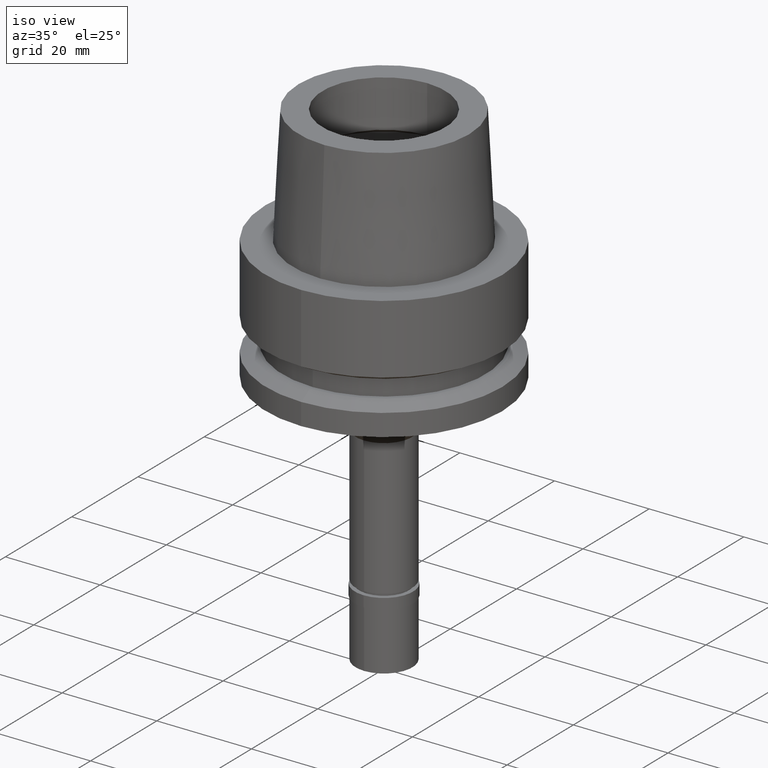
[diagram: clean part render]
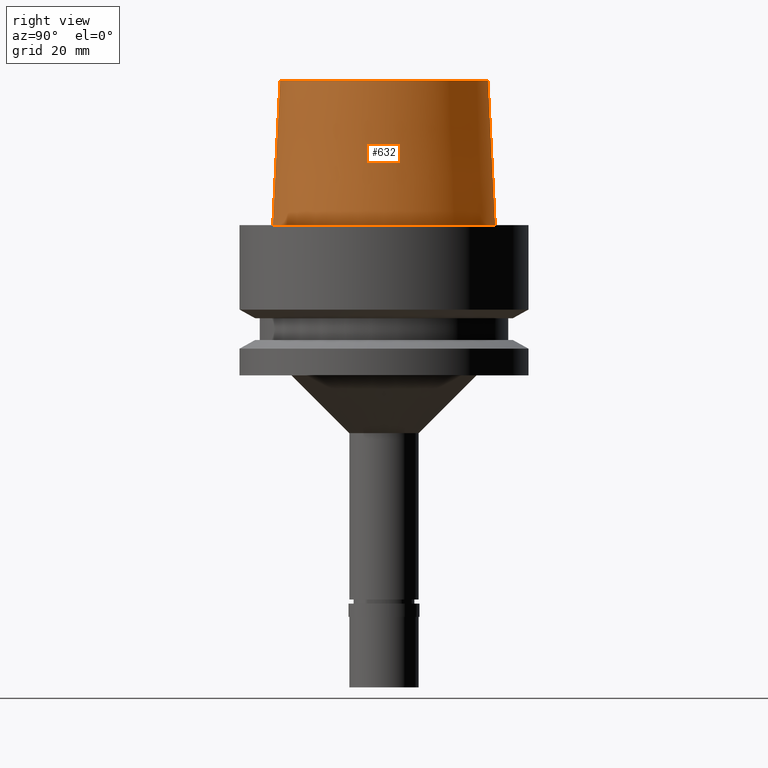
[diagram: tour spotlight — one face highlighted and labeled with its STEP entity id]
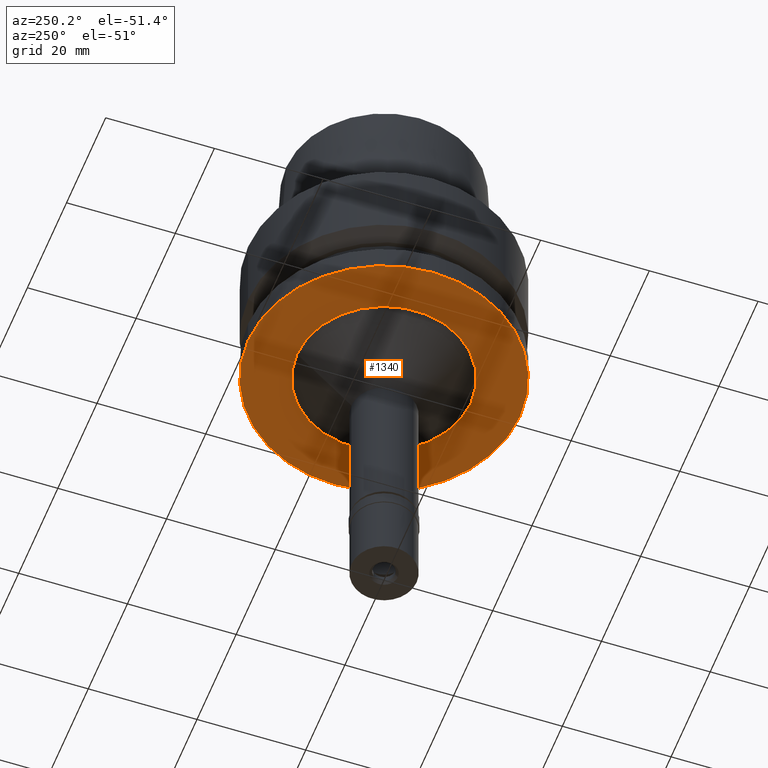
[diagram: tour spotlight — one face highlighted and labeled with its STEP entity id]
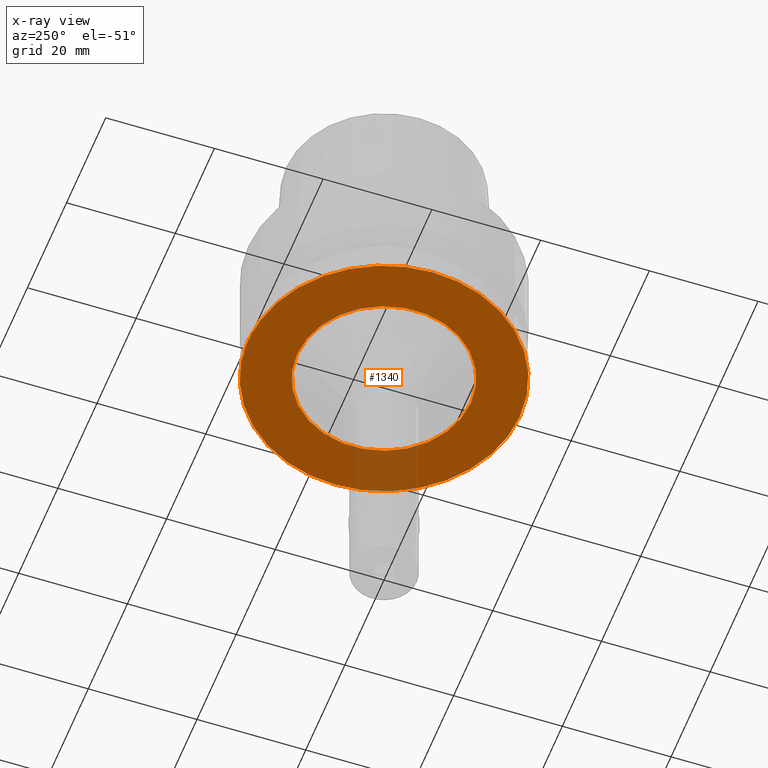
[diagram: x-ray of the same camera — body ghosted, this tour face saturated]
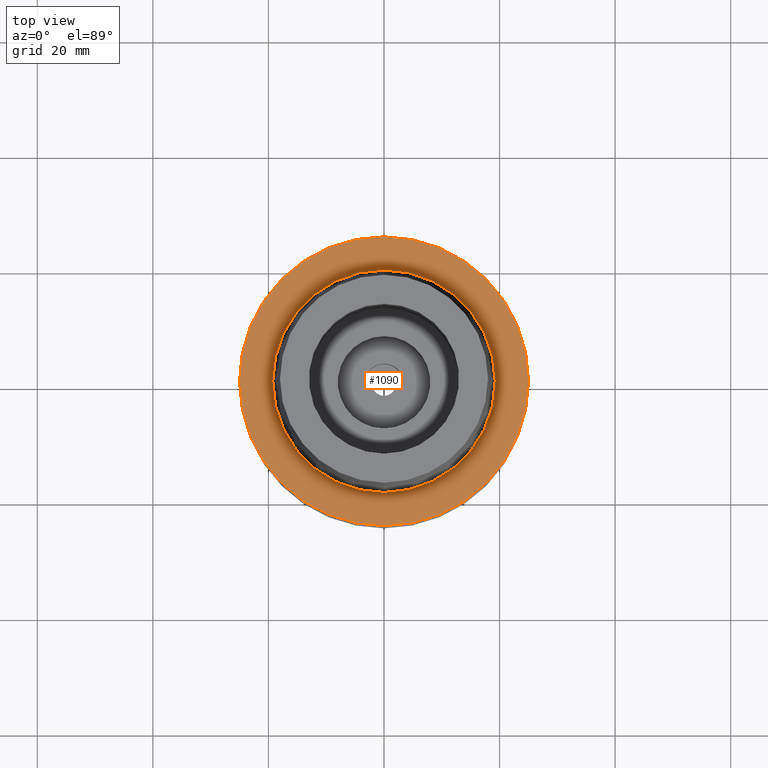
[diagram: tour spotlight — one face highlighted and labeled with its STEP entity id]
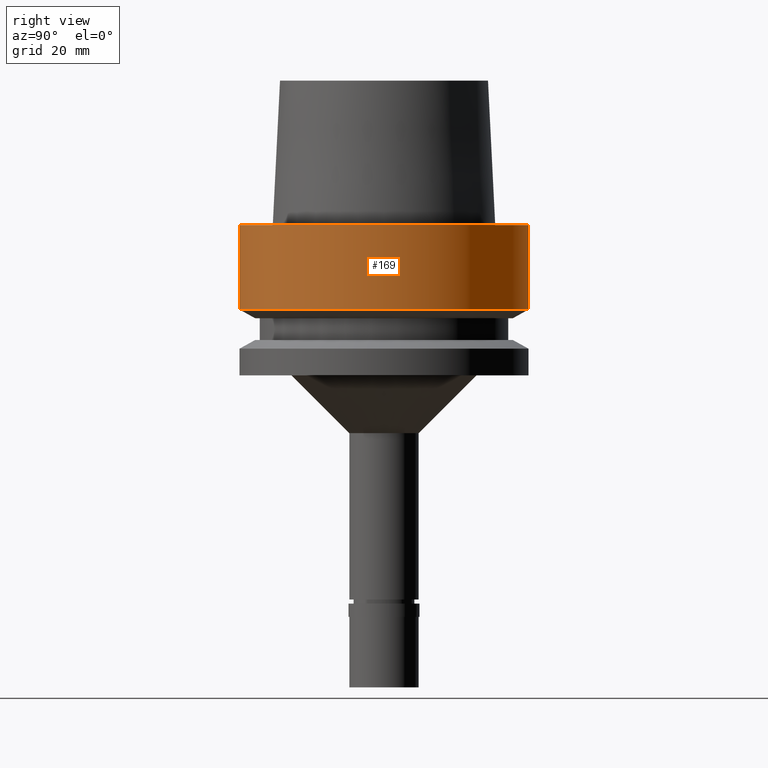
[diagram: tour spotlight — one face highlighted and labeled with its STEP entity id]
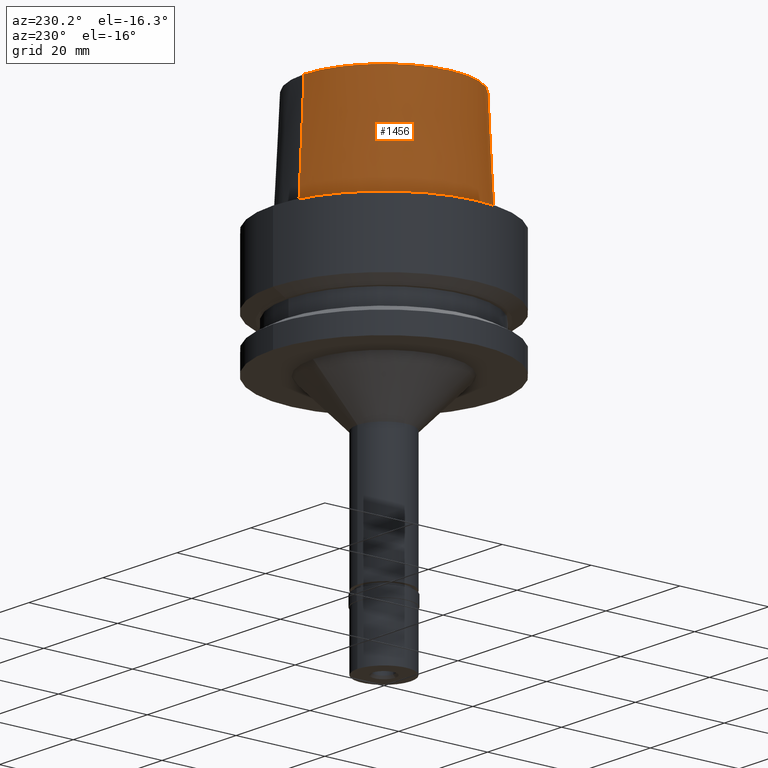
[diagram: tour spotlight — one face highlighted and labeled with its STEP entity id]
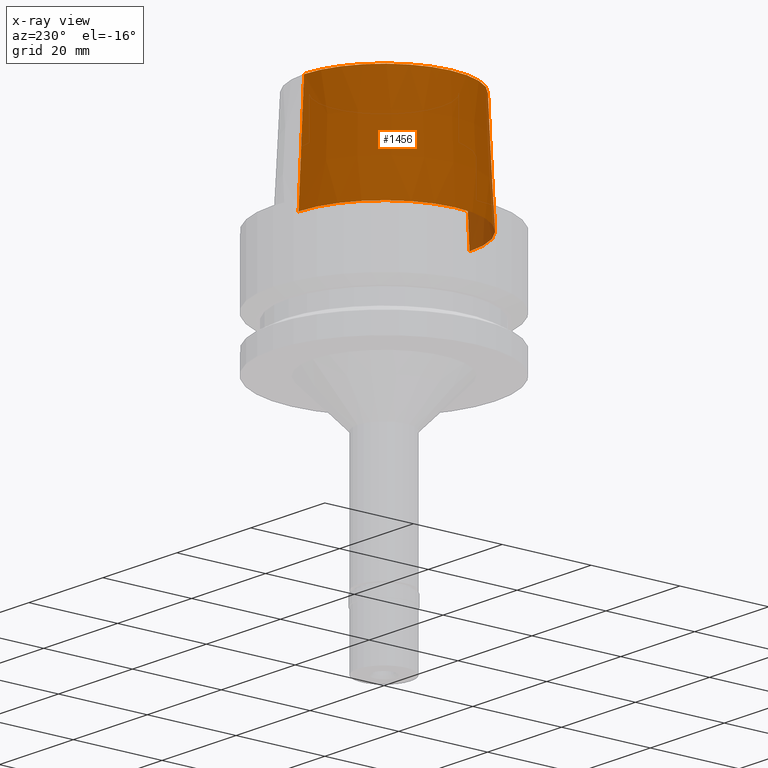
[diagram: x-ray of the same camera — body ghosted, this tour face saturated]
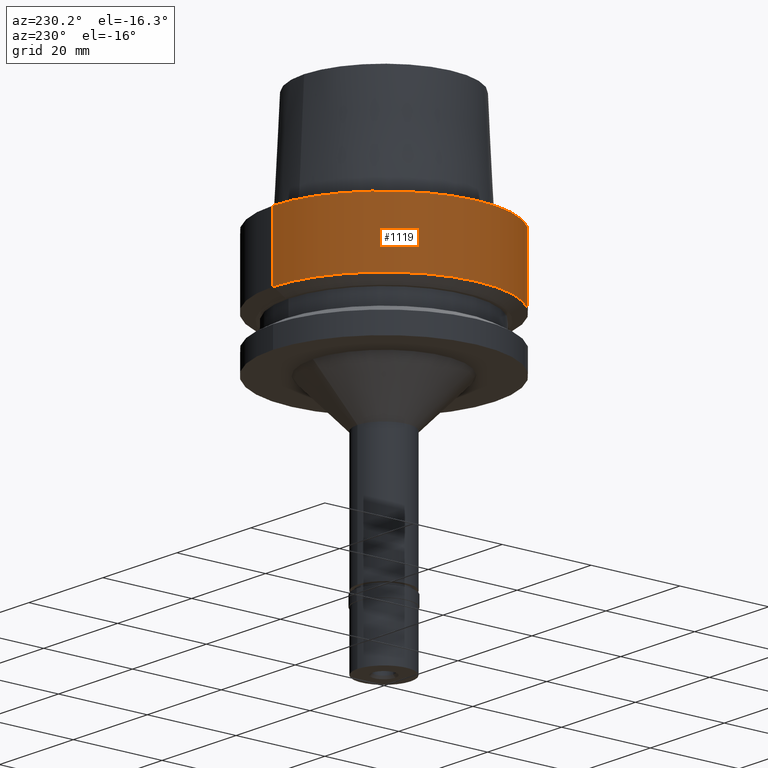
[diagram: tour spotlight — one face highlighted and labeled with its STEP entity id]
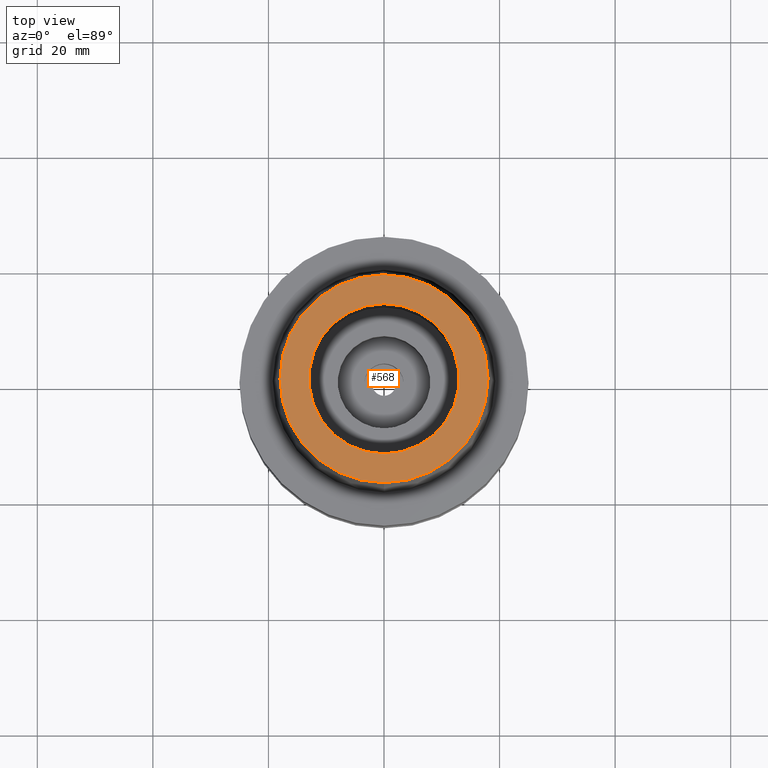
[diagram: tour spotlight — one face highlighted and labeled with its STEP entity id]
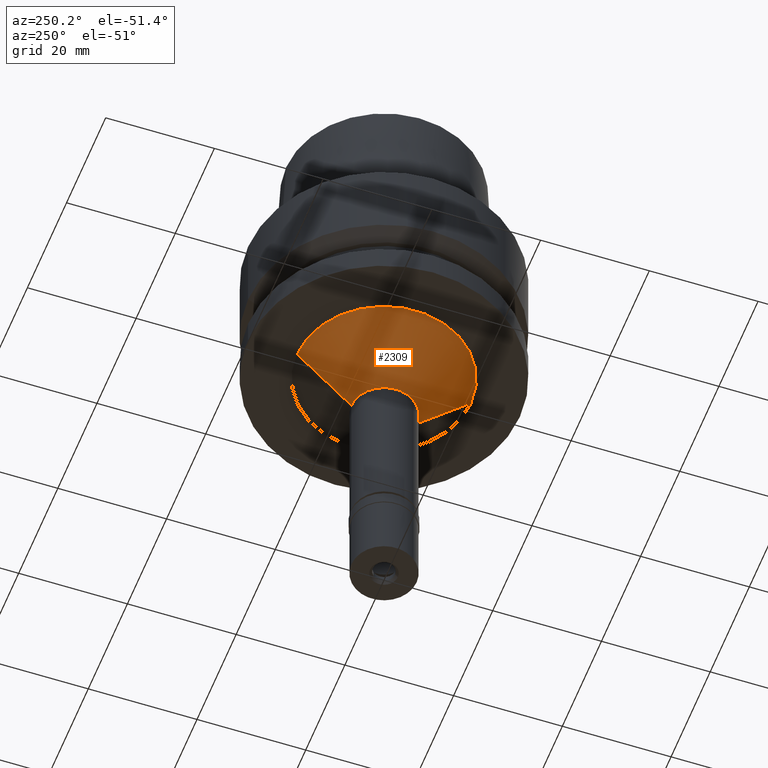
[diagram: tour spotlight — one face highlighted and labeled with its STEP entity id]
A machine part: a face-by-face anatomy tour. The part has 74 B-rep faces; the first image is the clean iso view, then the 8 largest visible faces are spotlighted one at a time (largest first), each with its STEP entity span.

Face 1 — right view, entity #632. In plain terms, the highlighted conical surface has half-angle 2.862 deg.
Definition (entity closure, byte-faithful):
#102 = VERTEX_POINT ( 'NONE', #1252 ) ;
#221 = ORIENTED_EDGE ( 'NONE', *, *, #223, .T. ) ;
#223 = EDGE_CURVE ( 'NONE', #284, #663, #2364, .T. ) ;
#231 = CARTESIAN_POINT ( 'NONE',  ( 0.0000000000000000000, -18.00000182882000033, 25.00000000000000000 ) ) ;
#247 = DIRECTION ( 'NONE',  ( 0.0000000000000000000, 0.0000000000000000000, -1.000000000000000000 ) ) ;
#284 = VERTEX_POINT ( 'NONE', #1404 ) ;
#299 = CARTESIAN_POINT ( 'NONE',  ( 0.0000000000000000000, 0.0000000000000000000, 25.00000000000000000 ) ) ;
#315 = DIRECTION ( 'NONE',  ( 0.0000000000000000000, -0.04993752584486958745, -0.9987523434327917338 ) ) ;
#361 = DIRECTION ( 'NONE',  ( 0.0000000000000000000, 0.0000000000000000000, 1.000000000000000000 ) ) ;
#386 = DIRECTION ( 'NONE',  ( 0.0000000000000000000, 0.0000000000000000000, -1.000000000000000000 ) ) ;
#454 = DIRECTION ( 'NONE',  ( 0.0000000000000000000, 0.04993752584486958745, -0.9987523434327917338 ) ) ;
#484 = VECTOR ( 'NONE', #454, 999.9999999999998863 ) ;
#499 = EDGE_LOOP ( 'NONE', ( #2394, #2133, #221, #862 ) ) ;
#533 = EDGE_CURVE ( 'NONE', #1245, #284, #2567, .T. ) ;
#632 = ADVANCED_FACE ( 'NONE', ( #794 ), #1314, .T. ) ;
#663 = VERTEX_POINT ( 'NONE', #1063 ) ;
#690 = AXIS2_PLACEMENT_3D ( 'NONE', #752, #361, #977 ) ;
#695 = CARTESIAN_POINT ( 'NONE',  ( 0.0000000000000000000, 18.00000182882000033, 25.00000000000000000 ) ) ;
#752 = CARTESIAN_POINT ( 'NONE',  ( 0.0000000000000000000, 0.0000000000000000000, 3.979039320256999774E-13 ) ) ;
#784 = VECTOR ( 'NONE', #315, 999.9999999999998863 ) ;
#794 = FACE_OUTER_BOUND ( 'NONE', #499, .T. ) ;
#862 = ORIENTED_EDGE ( 'NONE', *, *, #2318, .F. ) ;
#977 = DIRECTION ( 'NONE',  ( 0.0000000000000000000, -1.000000000000000000, 0.0000000000000000000 ) ) ;
#1063 = CARTESIAN_POINT ( 'NONE',  ( 0.0000000000000000000, 19.24999954280000125, 2.664535259100000578E-13 ) ) ;
#1245 = VERTEX_POINT ( 'NONE', #231 ) ;
#1252 = CARTESIAN_POINT ( 'NONE',  ( 0.0000000000000000000, 18.00000182882000033, 25.00000000000000000 ) ) ;
#1314 = CONICAL_SURFACE ( 'NONE', #1880, 18.62500068580999724, 0.04995830450907576964 ) ;
#1328 = LINE ( 'NONE', #695, #484 ) ;
#1359 = CARTESIAN_POINT ( 'NONE',  ( 0.0000000000000000000, -18.00000182882000033, 25.00000000000000000 ) ) ;
#1404 = CARTESIAN_POINT ( 'NONE',  ( 0.0000000000000000000, -19.24999954280000125, 2.664535259100000578E-13 ) ) ;
#1506 = EDGE_CURVE ( 'NONE', #102, #1245, #2067, .T. ) ;
#1541 = DIRECTION ( 'NONE',  ( 0.0000000000000000000, 1.000000000000000000, 0.0000000000000000000 ) ) ;
#1880 = AXIS2_PLACEMENT_3D ( 'NONE', #2469, #386, #2061 ) ;
#2061 = DIRECTION ( 'NONE',  ( 0.0000000000000000000, -1.000000000000000000, 0.0000000000000000000 ) ) ;
#2067 = CIRCLE ( 'NONE', #2328, 18.00000182882000033 ) ;
#2133 = ORIENTED_EDGE ( 'NONE', *, *, #533, .T. ) ;
#2318 = EDGE_CURVE ( 'NONE', #102, #663, #1328, .T. ) ;
#2328 = AXIS2_PLACEMENT_3D ( 'NONE', #299, #247, #1541 ) ;
#2364 = CIRCLE ( 'NONE', #690, 19.24999954280000125 ) ;
#2394 = ORIENTED_EDGE ( 'NONE', *, *, #1506, .T. ) ;
#2469 = CARTESIAN_POINT ( 'NONE',  ( 0.0000000000000000000, 0.0000000000000000000, 12.50000000000000000 ) ) ;
#2567 = LINE ( 'NONE', #1359, #784 ) ;

Face 2 — auxiliary view, entity #1340. An x-ray twin of the same camera follows (body ghosted, this face saturated) — the face is partly hidden behind the body. In plain terms, the highlighted planar face has unit normal (0, 0, 1).
Definition (entity closure, byte-faithful):
#7 = CIRCLE ( 'NONE', #1588, 25.00000000000000000 ) ;
#15 = ORIENTED_EDGE ( 'NONE', *, *, #2552, .F. ) ;
#50 = VERTEX_POINT ( 'NONE', #583 ) ;
#89 = AXIS2_PLACEMENT_3D ( 'NONE', #1023, #2679, #816 ) ;
#111 = DIRECTION ( 'NONE',  ( 0.0000000000000000000, -1.000000000000000000, 0.0000000000000000000 ) ) ;
#186 = PLANE ( 'NONE',  #89 ) ;
#261 = ORIENTED_EDGE ( 'NONE', *, *, #555, .F. ) ;
#470 = VERTEX_POINT ( 'NONE', #1976 ) ;
#521 = DIRECTION ( 'NONE',  ( 0.0000000000000000000, 0.0000000000000000000, 1.000000000000000000 ) ) ;
#555 = EDGE_CURVE ( 'NONE', #1065, #1529, #1234, .T. ) ;
#583 = CARTESIAN_POINT ( 'NONE',  ( 0.0000000000000000000, 25.00000000000000000, -26.00000000000000000 ) ) ;
#674 = CARTESIAN_POINT ( 'NONE',  ( 0.0000000000000000000, 0.0000000000000000000, -26.00000000000000000 ) ) ;
#816 = DIRECTION ( 'NONE',  ( 1.000000000000000000, 0.0000000000000000000, 0.0000000000000000000 ) ) ;
#837 = ORIENTED_EDGE ( 'NONE', *, *, #2004, .F. ) ;
#1010 = CIRCLE ( 'NONE', #1536, 16.00000000000000000 ) ;
#1023 = CARTESIAN_POINT ( 'NONE',  ( 0.0000000000000000000, 0.0000000000000000000, -26.00000000000000000 ) ) ;
#1043 = CARTESIAN_POINT ( 'NONE',  ( 0.0000000000000000000, -16.00000000000000000, -26.00000000000000000 ) ) ;
#1065 = VERTEX_POINT ( 'NONE', #1043 ) ;
#1106 = AXIS2_PLACEMENT_3D ( 'NONE', #2403, #521, #1971 ) ;
#1146 = DIRECTION ( 'NONE',  ( 0.0000000000000000000, 1.000000000000000000, 0.0000000000000000000 ) ) ;
#1173 = EDGE_CURVE ( 'NONE', #1529, #1065, #1010, .T. ) ;
#1234 = CIRCLE ( 'NONE', #1913, 16.00000000000000000 ) ;
#1340 = ADVANCED_FACE ( 'NONE', ( #2535, #1504 ), #186, .F. ) ;
#1342 = DIRECTION ( 'NONE',  ( 0.0000000000000000000, 1.000000000000000000, 0.0000000000000000000 ) ) ;
#1380 = DIRECTION ( 'NONE',  ( 0.0000000000000000000, 0.0000000000000000000, -1.000000000000000000 ) ) ;
#1504 = FACE_BOUND ( 'NONE', #1596, .T. ) ;
#1529 = VERTEX_POINT ( 'NONE', #2008 ) ;
#1536 = AXIS2_PLACEMENT_3D ( 'NONE', #2609, #1380, #1146 ) ;
#1588 = AXIS2_PLACEMENT_3D ( 'NONE', #2399, #2170, #1342 ) ;
#1596 = EDGE_LOOP ( 'NONE', ( #1778, #261 ) ) ;
#1778 = ORIENTED_EDGE ( 'NONE', *, *, #1173, .F. ) ;
#1913 = AXIS2_PLACEMENT_3D ( 'NONE', #674, #2188, #111 ) ;
#1971 = DIRECTION ( 'NONE',  ( 0.0000000000000000000, -1.000000000000000000, 0.0000000000000000000 ) ) ;
#1976 = CARTESIAN_POINT ( 'NONE',  ( 0.0000000000000000000, -25.00000000000000000, -26.00000000000000000 ) ) ;
#1992 = EDGE_LOOP ( 'NONE', ( #15, #837 ) ) ;
#2004 = EDGE_CURVE ( 'NONE', #470, #50, #2072, .T. ) ;
#2008 = CARTESIAN_POINT ( 'NONE',  ( 0.0000000000000000000, 16.00000000000000000, -26.00000000000000000 ) ) ;
#2072 = CIRCLE ( 'NONE', #1106, 25.00000000000000000 ) ;
#2170 = DIRECTION ( 'NONE',  ( 0.0000000000000000000, 0.0000000000000000000, 1.000000000000000000 ) ) ;
#2188 = DIRECTION ( 'NONE',  ( 0.0000000000000000000, 0.0000000000000000000, -1.000000000000000000 ) ) ;
#2399 = CARTESIAN_POINT ( 'NONE',  ( 0.0000000000000000000, 0.0000000000000000000, -26.00000000000000000 ) ) ;
#2403 = CARTESIAN_POINT ( 'NONE',  ( 0.0000000000000000000, 0.0000000000000000000, -26.00000000000000000 ) ) ;
#2535 = FACE_OUTER_BOUND ( 'NONE', #1992, .T. ) ;
#2552 = EDGE_CURVE ( 'NONE', #50, #470, #7, .T. ) ;
#2609 = CARTESIAN_POINT ( 'NONE',  ( 0.0000000000000000000, 0.0000000000000000000, -26.00000000000000000 ) ) ;
#2679 = DIRECTION ( 'NONE',  ( 0.0000000000000000000, 0.0000000000000000000, 1.000000000000000000 ) ) ;

Face 3 — top view, entity #1090. In plain terms, the highlighted planar face has unit normal (0, 0, 1).
Definition (entity closure, byte-faithful):
#34 = CARTESIAN_POINT ( 'NONE',  ( 0.0000000000000000000, 0.0000000000000000000, 3.979039320256999774E-13 ) ) ;
#36 = AXIS2_PLACEMENT_3D ( 'NONE', #2045, #1623, #1231 ) ;
#93 = AXIS2_PLACEMENT_3D ( 'NONE', #34, #1899, #1088 ) ;
#179 = ORIENTED_EDGE ( 'NONE', *, *, #1084, .F. ) ;
#213 = DIRECTION ( 'NONE',  ( 0.0000000000000000000, 0.0000000000000000000, -1.000000000000000000 ) ) ;
#223 = EDGE_CURVE ( 'NONE', #284, #663, #2364, .T. ) ;
#284 = VERTEX_POINT ( 'NONE', #1404 ) ;
#350 = ORIENTED_EDGE ( 'NONE', *, *, #223, .F. ) ;
#361 = DIRECTION ( 'NONE',  ( 0.0000000000000000000, 0.0000000000000000000, 1.000000000000000000 ) ) ;
#443 = CARTESIAN_POINT ( 'NONE',  ( 0.0000000000000000000, 0.0000000000000000000, 0.0000000000000000000 ) ) ;
#620 = EDGE_CURVE ( 'NONE', #2376, #751, #1004, .T. ) ;
#663 = VERTEX_POINT ( 'NONE', #1063 ) ;
#678 = CARTESIAN_POINT ( 'NONE',  ( 0.0000000000000000000, -25.00000000000000000, 1.705302565823999875E-13 ) ) ;
#690 = AXIS2_PLACEMENT_3D ( 'NONE', #752, #361, #977 ) ;
#751 = VERTEX_POINT ( 'NONE', #1969 ) ;
#752 = CARTESIAN_POINT ( 'NONE',  ( 0.0000000000000000000, 0.0000000000000000000, 3.979039320256999774E-13 ) ) ;
#777 = EDGE_LOOP ( 'NONE', ( #1749, #350 ) ) ;
#977 = DIRECTION ( 'NONE',  ( 0.0000000000000000000, -1.000000000000000000, 0.0000000000000000000 ) ) ;
#1004 = CIRCLE ( 'NONE', #36, 25.00000000000000000 ) ;
#1063 = CARTESIAN_POINT ( 'NONE',  ( 0.0000000000000000000, 19.24999954280000125, 2.664535259100000578E-13 ) ) ;
#1072 = CARTESIAN_POINT ( 'NONE',  ( 0.0000000000000000000, 0.0000000000000000000, 1.705302565823999875E-13 ) ) ;
#1084 = EDGE_CURVE ( 'NONE', #751, #2376, #2573, .T. ) ;
#1088 = DIRECTION ( 'NONE',  ( 0.0000000000000000000, 1.000000000000000000, 0.0000000000000000000 ) ) ;
#1090 = ADVANCED_FACE ( 'NONE', ( #2314, #1895 ), #1489, .T. ) ;
#1231 = DIRECTION ( 'NONE',  ( 0.0000000000000000000, -1.000000000000000000, 0.0000000000000000000 ) ) ;
#1290 = DIRECTION ( 'NONE',  ( 0.0000000000000000000, 0.0000000000000000000, 1.000000000000000000 ) ) ;
#1404 = CARTESIAN_POINT ( 'NONE',  ( 0.0000000000000000000, -19.24999954280000125, 2.664535259100000578E-13 ) ) ;
#1489 = PLANE ( 'NONE',  #1578 ) ;
#1492 = AXIS2_PLACEMENT_3D ( 'NONE', #1072, #213, #1673 ) ;
#1578 = AXIS2_PLACEMENT_3D ( 'NONE', #443, #1290, #1849 ) ;
#1623 = DIRECTION ( 'NONE',  ( 0.0000000000000000000, 0.0000000000000000000, -1.000000000000000000 ) ) ;
#1673 = DIRECTION ( 'NONE',  ( 0.0000000000000000000, 1.000000000000000000, 0.0000000000000000000 ) ) ;
#1710 = CIRCLE ( 'NONE', #93, 19.24999954280000125 ) ;
#1741 = EDGE_CURVE ( 'NONE', #663, #284, #1710, .T. ) ;
#1749 = ORIENTED_EDGE ( 'NONE', *, *, #1741, .F. ) ;
#1849 = DIRECTION ( 'NONE',  ( 1.000000000000000000, 0.0000000000000000000, 0.0000000000000000000 ) ) ;
#1895 = FACE_BOUND ( 'NONE', #777, .T. ) ;
#1899 = DIRECTION ( 'NONE',  ( 0.0000000000000000000, 0.0000000000000000000, 1.000000000000000000 ) ) ;
#1969 = CARTESIAN_POINT ( 'NONE',  ( 0.0000000000000000000, 25.00000000000000000, 1.705302565823999875E-13 ) ) ;
#1995 = ORIENTED_EDGE ( 'NONE', *, *, #620, .F. ) ;
#2045 = CARTESIAN_POINT ( 'NONE',  ( 0.0000000000000000000, 0.0000000000000000000, 1.705302565823999875E-13 ) ) ;
#2314 = FACE_OUTER_BOUND ( 'NONE', #2596, .T. ) ;
#2364 = CIRCLE ( 'NONE', #690, 19.24999954280000125 ) ;
#2376 = VERTEX_POINT ( 'NONE', #678 ) ;
#2573 = CIRCLE ( 'NONE', #1492, 25.00000000000000000 ) ;
#2596 = EDGE_LOOP ( 'NONE', ( #179, #1995 ) ) ;

Face 4 — right view, entity #169. In plain terms, the highlighted cylindrical surface (partial cylindrical patch) has radius 25 mm, axis along (0, 0, 1).
Definition (entity closure, byte-faithful):
#86 = VECTOR ( 'NONE', #347, 1000.000000000000000 ) ;
#149 = EDGE_LOOP ( 'NONE', ( #2570, #1032, #2234, #713 ) ) ;
#169 = ADVANCED_FACE ( 'NONE', ( #547 ), #590, .T. ) ;
#213 = DIRECTION ( 'NONE',  ( 0.0000000000000000000, 0.0000000000000000000, -1.000000000000000000 ) ) ;
#347 = DIRECTION ( 'NONE',  ( 0.0000000000000000000, 0.0000000000000000000, -1.000000000000000000 ) ) ;
#500 = EDGE_CURVE ( 'NONE', #720, #1200, #1444, .T. ) ;
#547 = FACE_OUTER_BOUND ( 'NONE', #149, .T. ) ;
#590 = CYLINDRICAL_SURFACE ( 'NONE', #1882, 25.00000000000000000 ) ;
#678 = CARTESIAN_POINT ( 'NONE',  ( 0.0000000000000000000, -25.00000000000000000, 1.705302565823999875E-13 ) ) ;
#713 = ORIENTED_EDGE ( 'NONE', *, *, #2290, .F. ) ;
#720 = VERTEX_POINT ( 'NONE', #1746 ) ;
#751 = VERTEX_POINT ( 'NONE', #1969 ) ;
#799 = VECTOR ( 'NONE', #2555, 1000.000000000000000 ) ;
#882 = LINE ( 'NONE', #2122, #799 ) ;
#1016 = EDGE_CURVE ( 'NONE', #2376, #720, #1801, .T. ) ;
#1022 = DIRECTION ( 'NONE',  ( 0.0000000000000000000, 1.000000000000000000, 0.0000000000000000000 ) ) ;
#1032 = ORIENTED_EDGE ( 'NONE', *, *, #1016, .T. ) ;
#1072 = CARTESIAN_POINT ( 'NONE',  ( 0.0000000000000000000, 0.0000000000000000000, 1.705302565823999875E-13 ) ) ;
#1084 = EDGE_CURVE ( 'NONE', #751, #2376, #2573, .T. ) ;
#1102 = CARTESIAN_POINT ( 'NONE',  ( 0.0000000000000000000, 0.0000000000000000000, -14.61835441913999922 ) ) ;
#1200 = VERTEX_POINT ( 'NONE', #1218 ) ;
#1218 = CARTESIAN_POINT ( 'NONE',  ( 0.0000000000000000000, 25.00000000000000000, -14.61835441913999922 ) ) ;
#1444 = CIRCLE ( 'NONE', #1621, 25.00000000000000000 ) ;
#1492 = AXIS2_PLACEMENT_3D ( 'NONE', #1072, #213, #1673 ) ;
#1579 = DIRECTION ( 'NONE',  ( 0.0000000000000000000, 0.0000000000000000000, 1.000000000000000000 ) ) ;
#1621 = AXIS2_PLACEMENT_3D ( 'NONE', #1102, #1579, #1959 ) ;
#1673 = DIRECTION ( 'NONE',  ( 0.0000000000000000000, 1.000000000000000000, 0.0000000000000000000 ) ) ;
#1746 = CARTESIAN_POINT ( 'NONE',  ( 0.0000000000000000000, -25.00000000000000000, -14.61835441913999922 ) ) ;
#1801 = LINE ( 'NONE', #2629, #86 ) ;
#1882 = AXIS2_PLACEMENT_3D ( 'NONE', #2261, #2486, #1022 ) ;
#1959 = DIRECTION ( 'NONE',  ( 0.0000000000000000000, -1.000000000000000000, 0.0000000000000000000 ) ) ;
#1969 = CARTESIAN_POINT ( 'NONE',  ( 0.0000000000000000000, 25.00000000000000000, 1.705302565823999875E-13 ) ) ;
#2122 = CARTESIAN_POINT ( 'NONE',  ( 0.0000000000000000000, 25.00000000000000000, 1.136868377215999875E-13 ) ) ;
#2234 = ORIENTED_EDGE ( 'NONE', *, *, #500, .T. ) ;
#2261 = CARTESIAN_POINT ( 'NONE',  ( 0.0000000000000000000, 0.0000000000000000000, -81.04999999999999716 ) ) ;
#2290 = EDGE_CURVE ( 'NONE', #751, #1200, #882, .T. ) ;
#2376 = VERTEX_POINT ( 'NONE', #678 ) ;
#2486 = DIRECTION ( 'NONE',  ( 0.0000000000000000000, 0.0000000000000000000, 1.000000000000000000 ) ) ;
#2555 = DIRECTION ( 'NONE',  ( 0.0000000000000000000, 0.0000000000000000000, -1.000000000000000000 ) ) ;
#2570 = ORIENTED_EDGE ( 'NONE', *, *, #1084, .T. ) ;
#2573 = CIRCLE ( 'NONE', #1492, 25.00000000000000000 ) ;
#2629 = CARTESIAN_POINT ( 'NONE',  ( 0.0000000000000000000, -25.00000000000000000, 1.136868377215999875E-13 ) ) ;

Face 5 — auxiliary view, entity #1456. An x-ray twin of the same camera follows (body ghosted, this face saturated) — the face is partly hidden behind the body. In plain terms, the highlighted conical surface has half-angle 2.862 deg.
Definition (entity closure, byte-faithful):
#34 = CARTESIAN_POINT ( 'NONE',  ( 0.0000000000000000000, 0.0000000000000000000, 3.979039320256999774E-13 ) ) ;
#43 = CIRCLE ( 'NONE', #1013, 18.00000182882000033 ) ;
#68 = CARTESIAN_POINT ( 'NONE',  ( 0.0000000000000000000, 0.0000000000000000000, 12.50000000000000000 ) ) ;
#79 = DIRECTION ( 'NONE',  ( 0.0000000000000000000, 0.0000000000000000000, -1.000000000000000000 ) ) ;
#93 = AXIS2_PLACEMENT_3D ( 'NONE', #34, #1899, #1088 ) ;
#102 = VERTEX_POINT ( 'NONE', #1252 ) ;
#231 = CARTESIAN_POINT ( 'NONE',  ( 0.0000000000000000000, -18.00000182882000033, 25.00000000000000000 ) ) ;
#284 = VERTEX_POINT ( 'NONE', #1404 ) ;
#315 = DIRECTION ( 'NONE',  ( 0.0000000000000000000, -0.04993752584486958745, -0.9987523434327917338 ) ) ;
#349 = CONICAL_SURFACE ( 'NONE', #2454, 18.62500068580999724, 0.04995830450907576964 ) ;
#375 = DIRECTION ( 'NONE',  ( 0.0000000000000000000, 0.0000000000000000000, -1.000000000000000000 ) ) ;
#454 = DIRECTION ( 'NONE',  ( 0.0000000000000000000, 0.04993752584486958745, -0.9987523434327917338 ) ) ;
#484 = VECTOR ( 'NONE', #454, 999.9999999999998863 ) ;
#533 = EDGE_CURVE ( 'NONE', #1245, #284, #2567, .T. ) ;
#663 = VERTEX_POINT ( 'NONE', #1063 ) ;
#695 = CARTESIAN_POINT ( 'NONE',  ( 0.0000000000000000000, 18.00000182882000033, 25.00000000000000000 ) ) ;
#784 = VECTOR ( 'NONE', #315, 999.9999999999998863 ) ;
#796 = DIRECTION ( 'NONE',  ( 0.0000000000000000000, -1.000000000000000000, 0.0000000000000000000 ) ) ;
#800 = ORIENTED_EDGE ( 'NONE', *, *, #533, .F. ) ;
#878 = FACE_OUTER_BOUND ( 'NONE', #895, .T. ) ;
#893 = DIRECTION ( 'NONE',  ( 0.0000000000000000000, -1.000000000000000000, 0.0000000000000000000 ) ) ;
#895 = EDGE_LOOP ( 'NONE', ( #1175, #800, #1334, #954 ) ) ;
#954 = ORIENTED_EDGE ( 'NONE', *, *, #2318, .T. ) ;
#1013 = AXIS2_PLACEMENT_3D ( 'NONE', #1898, #375, #796 ) ;
#1063 = CARTESIAN_POINT ( 'NONE',  ( 0.0000000000000000000, 19.24999954280000125, 2.664535259100000578E-13 ) ) ;
#1088 = DIRECTION ( 'NONE',  ( 0.0000000000000000000, 1.000000000000000000, 0.0000000000000000000 ) ) ;
#1175 = ORIENTED_EDGE ( 'NONE', *, *, #1741, .T. ) ;
#1245 = VERTEX_POINT ( 'NONE', #231 ) ;
#1252 = CARTESIAN_POINT ( 'NONE',  ( 0.0000000000000000000, 18.00000182882000033, 25.00000000000000000 ) ) ;
#1260 = EDGE_CURVE ( 'NONE', #1245, #102, #43, .T. ) ;
#1328 = LINE ( 'NONE', #695, #484 ) ;
#1334 = ORIENTED_EDGE ( 'NONE', *, *, #1260, .T. ) ;
#1359 = CARTESIAN_POINT ( 'NONE',  ( 0.0000000000000000000, -18.00000182882000033, 25.00000000000000000 ) ) ;
#1404 = CARTESIAN_POINT ( 'NONE',  ( 0.0000000000000000000, -19.24999954280000125, 2.664535259100000578E-13 ) ) ;
#1456 = ADVANCED_FACE ( 'NONE', ( #878 ), #349, .T. ) ;
#1710 = CIRCLE ( 'NONE', #93, 19.24999954280000125 ) ;
#1741 = EDGE_CURVE ( 'NONE', #663, #284, #1710, .T. ) ;
#1898 = CARTESIAN_POINT ( 'NONE',  ( 0.0000000000000000000, 0.0000000000000000000, 25.00000000000000000 ) ) ;
#1899 = DIRECTION ( 'NONE',  ( 0.0000000000000000000, 0.0000000000000000000, 1.000000000000000000 ) ) ;
#2318 = EDGE_CURVE ( 'NONE', #102, #663, #1328, .T. ) ;
#2454 = AXIS2_PLACEMENT_3D ( 'NONE', #68, #79, #893 ) ;
#2567 = LINE ( 'NONE', #1359, #784 ) ;

Face 6 — auxiliary view, entity #1119. In plain terms, the highlighted cylindrical surface (partial cylindrical patch) has radius 25 mm, axis along (0, 0, 1).
Definition (entity closure, byte-faithful):
#36 = AXIS2_PLACEMENT_3D ( 'NONE', #2045, #1623, #1231 ) ;
#86 = VECTOR ( 'NONE', #347, 1000.000000000000000 ) ;
#192 = DIRECTION ( 'NONE',  ( 0.0000000000000000000, 0.0000000000000000000, 1.000000000000000000 ) ) ;
#347 = DIRECTION ( 'NONE',  ( 0.0000000000000000000, 0.0000000000000000000, -1.000000000000000000 ) ) ;
#596 = FACE_OUTER_BOUND ( 'NONE', #2075, .T. ) ;
#620 = EDGE_CURVE ( 'NONE', #2376, #751, #1004, .T. ) ;
#677 = EDGE_CURVE ( 'NONE', #1200, #720, #2612, .T. ) ;
#678 = CARTESIAN_POINT ( 'NONE',  ( 0.0000000000000000000, -25.00000000000000000, 1.705302565823999875E-13 ) ) ;
#720 = VERTEX_POINT ( 'NONE', #1746 ) ;
#751 = VERTEX_POINT ( 'NONE', #1969 ) ;
#768 = ORIENTED_EDGE ( 'NONE', *, *, #620, .T. ) ;
#799 = VECTOR ( 'NONE', #2555, 1000.000000000000000 ) ;
#882 = LINE ( 'NONE', #2122, #799 ) ;
#1004 = CIRCLE ( 'NONE', #36, 25.00000000000000000 ) ;
#1016 = EDGE_CURVE ( 'NONE', #2376, #720, #1801, .T. ) ;
#1029 = DIRECTION ( 'NONE',  ( 0.0000000000000000000, 1.000000000000000000, 0.0000000000000000000 ) ) ;
#1058 = ORIENTED_EDGE ( 'NONE', *, *, #2290, .T. ) ;
#1119 = ADVANCED_FACE ( 'NONE', ( #596 ), #1436, .T. ) ;
#1190 = AXIS2_PLACEMENT_3D ( 'NONE', #2279, #192, #1029 ) ;
#1200 = VERTEX_POINT ( 'NONE', #1218 ) ;
#1218 = CARTESIAN_POINT ( 'NONE',  ( 0.0000000000000000000, 25.00000000000000000, -14.61835441913999922 ) ) ;
#1231 = DIRECTION ( 'NONE',  ( 0.0000000000000000000, -1.000000000000000000, 0.0000000000000000000 ) ) ;
#1388 = ORIENTED_EDGE ( 'NONE', *, *, #1016, .F. ) ;
#1436 = CYLINDRICAL_SURFACE ( 'NONE', #1190, 25.00000000000000000 ) ;
#1470 = CARTESIAN_POINT ( 'NONE',  ( 0.0000000000000000000, 0.0000000000000000000, -14.61835441913999922 ) ) ;
#1623 = DIRECTION ( 'NONE',  ( 0.0000000000000000000, 0.0000000000000000000, -1.000000000000000000 ) ) ;
#1746 = CARTESIAN_POINT ( 'NONE',  ( 0.0000000000000000000, -25.00000000000000000, -14.61835441913999922 ) ) ;
#1801 = LINE ( 'NONE', #2629, #86 ) ;
#1969 = CARTESIAN_POINT ( 'NONE',  ( 0.0000000000000000000, 25.00000000000000000, 1.705302565823999875E-13 ) ) ;
#2045 = CARTESIAN_POINT ( 'NONE',  ( 0.0000000000000000000, 0.0000000000000000000, 1.705302565823999875E-13 ) ) ;
#2075 = EDGE_LOOP ( 'NONE', ( #2187, #1388, #768, #1058 ) ) ;
#2122 = CARTESIAN_POINT ( 'NONE',  ( 0.0000000000000000000, 25.00000000000000000, 1.136868377215999875E-13 ) ) ;
#2187 = ORIENTED_EDGE ( 'NONE', *, *, #677, .T. ) ;
#2279 = CARTESIAN_POINT ( 'NONE',  ( 0.0000000000000000000, 0.0000000000000000000, -81.04999999999999716 ) ) ;
#2283 = DIRECTION ( 'NONE',  ( 0.0000000000000000000, 0.0000000000000000000, 1.000000000000000000 ) ) ;
#2290 = EDGE_CURVE ( 'NONE', #751, #1200, #882, .T. ) ;
#2376 = VERTEX_POINT ( 'NONE', #678 ) ;
#2507 = DIRECTION ( 'NONE',  ( 0.0000000000000000000, 1.000000000000000000, 0.0000000000000000000 ) ) ;
#2531 = AXIS2_PLACEMENT_3D ( 'NONE', #1470, #2283, #2507 ) ;
#2555 = DIRECTION ( 'NONE',  ( 0.0000000000000000000, 0.0000000000000000000, -1.000000000000000000 ) ) ;
#2612 = CIRCLE ( 'NONE', #2531, 25.00000000000000000 ) ;
#2629 = CARTESIAN_POINT ( 'NONE',  ( 0.0000000000000000000, -25.00000000000000000, 1.136868377215999875E-13 ) ) ;

Face 7 — top view, entity #568. In plain terms, the highlighted planar face has unit normal (0, 0, 1).
Definition (entity closure, byte-faithful):
#43 = CIRCLE ( 'NONE', #1013, 18.00000182882000033 ) ;
#102 = VERTEX_POINT ( 'NONE', #1252 ) ;
#171 = AXIS2_PLACEMENT_3D ( 'NONE', #1993, #1728, #1928 ) ;
#231 = CARTESIAN_POINT ( 'NONE',  ( 0.0000000000000000000, -18.00000182882000033, 25.00000000000000000 ) ) ;
#247 = DIRECTION ( 'NONE',  ( 0.0000000000000000000, 0.0000000000000000000, -1.000000000000000000 ) ) ;
#266 = AXIS2_PLACEMENT_3D ( 'NONE', #1733, #465, #2563 ) ;
#285 = FACE_BOUND ( 'NONE', #880, .T. ) ;
#299 = CARTESIAN_POINT ( 'NONE',  ( 0.0000000000000000000, 0.0000000000000000000, 25.00000000000000000 ) ) ;
#375 = DIRECTION ( 'NONE',  ( 0.0000000000000000000, 0.0000000000000000000, -1.000000000000000000 ) ) ;
#433 = AXIS2_PLACEMENT_3D ( 'NONE', #1347, #1516, #905 ) ;
#465 = DIRECTION ( 'NONE',  ( 0.0000000000000000000, 0.0000000000000000000, 1.000000000000000000 ) ) ;
#568 = ADVANCED_FACE ( 'NONE', ( #1337, #285 ), #1160, .T. ) ;
#676 = ORIENTED_EDGE ( 'NONE', *, *, #2429, .F. ) ;
#796 = DIRECTION ( 'NONE',  ( 0.0000000000000000000, -1.000000000000000000, 0.0000000000000000000 ) ) ;
#880 = EDGE_LOOP ( 'NONE', ( #1564, #676 ) ) ;
#905 = DIRECTION ( 'NONE',  ( 0.0000000000000000000, 1.000000000000000000, 0.0000000000000000000 ) ) ;
#918 = CIRCLE ( 'NONE', #433, 13.00000000000000000 ) ;
#952 = CARTESIAN_POINT ( 'NONE',  ( 0.0000000000000000000, 13.00000000000000000, 25.00000000000000000 ) ) ;
#1003 = ORIENTED_EDGE ( 'NONE', *, *, #1506, .F. ) ;
#1013 = AXIS2_PLACEMENT_3D ( 'NONE', #1898, #375, #796 ) ;
#1160 = PLANE ( 'NONE',  #171 ) ;
#1245 = VERTEX_POINT ( 'NONE', #231 ) ;
#1252 = CARTESIAN_POINT ( 'NONE',  ( 0.0000000000000000000, 18.00000182882000033, 25.00000000000000000 ) ) ;
#1260 = EDGE_CURVE ( 'NONE', #1245, #102, #43, .T. ) ;
#1337 = FACE_OUTER_BOUND ( 'NONE', #1890, .T. ) ;
#1347 = CARTESIAN_POINT ( 'NONE',  ( 0.0000000000000000000, 0.0000000000000000000, 25.00000000000000000 ) ) ;
#1459 = CIRCLE ( 'NONE', #266, 13.00000000000000000 ) ;
#1468 = EDGE_CURVE ( 'NONE', #1879, #2593, #918, .T. ) ;
#1506 = EDGE_CURVE ( 'NONE', #102, #1245, #2067, .T. ) ;
#1516 = DIRECTION ( 'NONE',  ( 0.0000000000000000000, 0.0000000000000000000, 1.000000000000000000 ) ) ;
#1541 = DIRECTION ( 'NONE',  ( 0.0000000000000000000, 1.000000000000000000, 0.0000000000000000000 ) ) ;
#1564 = ORIENTED_EDGE ( 'NONE', *, *, #1468, .F. ) ;
#1728 = DIRECTION ( 'NONE',  ( 0.0000000000000000000, 0.0000000000000000000, 1.000000000000000000 ) ) ;
#1733 = CARTESIAN_POINT ( 'NONE',  ( 0.0000000000000000000, 0.0000000000000000000, 25.00000000000000000 ) ) ;
#1879 = VERTEX_POINT ( 'NONE', #952 ) ;
#1890 = EDGE_LOOP ( 'NONE', ( #1003, #2239 ) ) ;
#1898 = CARTESIAN_POINT ( 'NONE',  ( 0.0000000000000000000, 0.0000000000000000000, 25.00000000000000000 ) ) ;
#1928 = DIRECTION ( 'NONE',  ( 1.000000000000000000, 0.0000000000000000000, 0.0000000000000000000 ) ) ;
#1993 = CARTESIAN_POINT ( 'NONE',  ( 0.0000000000000000000, 0.0000000000000000000, 25.00000000000000000 ) ) ;
#2067 = CIRCLE ( 'NONE', #2328, 18.00000182882000033 ) ;
#2197 = CARTESIAN_POINT ( 'NONE',  ( 0.0000000000000000000, -13.00000000000000000, 25.00000000000000000 ) ) ;
#2239 = ORIENTED_EDGE ( 'NONE', *, *, #1260, .F. ) ;
#2328 = AXIS2_PLACEMENT_3D ( 'NONE', #299, #247, #1541 ) ;
#2429 = EDGE_CURVE ( 'NONE', #2593, #1879, #1459, .T. ) ;
#2563 = DIRECTION ( 'NONE',  ( 0.0000000000000000000, -1.000000000000000000, 0.0000000000000000000 ) ) ;
#2593 = VERTEX_POINT ( 'NONE', #2197 ) ;

Face 8 — auxiliary view, entity #2309. In plain terms, the highlighted conical surface has half-angle 45 deg.
Definition (entity closure, byte-faithful):
#111 = DIRECTION ( 'NONE',  ( 0.0000000000000000000, -1.000000000000000000, 0.0000000000000000000 ) ) ;
#123 = VECTOR ( 'NONE', #468, 1000.000000000000114 ) ;
#344 = CARTESIAN_POINT ( 'NONE',  ( 0.0000000000000000000, -6.000000000000000000, -36.00000000000000000 ) ) ;
#453 = ORIENTED_EDGE ( 'NONE', *, *, #707, .T. ) ;
#468 = DIRECTION ( 'NONE',  ( 0.0000000000000000000, -0.7071067811865474617, -0.7071067811865474617 ) ) ;
#555 = EDGE_CURVE ( 'NONE', #1065, #1529, #1234, .T. ) ;
#637 = FACE_OUTER_BOUND ( 'NONE', #1172, .T. ) ;
#674 = CARTESIAN_POINT ( 'NONE',  ( 0.0000000000000000000, 0.0000000000000000000, -26.00000000000000000 ) ) ;
#707 = EDGE_CURVE ( 'NONE', #1529, #1270, #2353, .T. ) ;
#941 = CARTESIAN_POINT ( 'NONE',  ( 0.0000000000000000000, 0.0000000000000000000, -36.00000000000000000 ) ) ;
#1021 = VECTOR ( 'NONE', #2210, 1000.000000000000114 ) ;
#1043 = CARTESIAN_POINT ( 'NONE',  ( 0.0000000000000000000, -16.00000000000000000, -26.00000000000000000 ) ) ;
#1065 = VERTEX_POINT ( 'NONE', #1043 ) ;
#1085 = CARTESIAN_POINT ( 'NONE',  ( 0.0000000000000000000, 0.0000000000000000000, -31.00000000000000000 ) ) ;
#1091 = ORIENTED_EDGE ( 'NONE', *, *, #1906, .F. ) ;
#1099 = CARTESIAN_POINT ( 'NONE',  ( 0.0000000000000000000, 16.00000000000000000, -26.00000000000000000 ) ) ;
#1112 = DIRECTION ( 'NONE',  ( 0.0000000000000000000, 1.000000000000000000, 0.0000000000000000000 ) ) ;
#1172 = EDGE_LOOP ( 'NONE', ( #1091, #2258, #2571, #453 ) ) ;
#1234 = CIRCLE ( 'NONE', #1913, 16.00000000000000000 ) ;
#1270 = VERTEX_POINT ( 'NONE', #1494 ) ;
#1325 = CIRCLE ( 'NONE', #2151, 6.000000000000000000 ) ;
#1383 = CARTESIAN_POINT ( 'NONE',  ( 0.0000000000000000000, -16.00000000000000000, -26.00000000000000000 ) ) ;
#1494 = CARTESIAN_POINT ( 'NONE',  ( 0.0000000000000000000, 6.000000000000000000, -36.00000000000000000 ) ) ;
#1529 = VERTEX_POINT ( 'NONE', #2008 ) ;
#1677 = AXIS2_PLACEMENT_3D ( 'NONE', #1085, #2572, #1112 ) ;
#1790 = DIRECTION ( 'NONE',  ( 0.0000000000000000000, -1.000000000000000000, 0.0000000000000000000 ) ) ;
#1906 = EDGE_CURVE ( 'NONE', #2528, #1270, #1325, .T. ) ;
#1913 = AXIS2_PLACEMENT_3D ( 'NONE', #674, #2188, #111 ) ;
#1927 = CONICAL_SURFACE ( 'NONE', #1677, 11.00000000000000000, 0.7853981633972997312 ) ;
#2008 = CARTESIAN_POINT ( 'NONE',  ( 0.0000000000000000000, 16.00000000000000000, -26.00000000000000000 ) ) ;
#2151 = AXIS2_PLACEMENT_3D ( 'NONE', #941, #2418, #1790 ) ;
#2188 = DIRECTION ( 'NONE',  ( 0.0000000000000000000, 0.0000000000000000000, -1.000000000000000000 ) ) ;
#2210 = DIRECTION ( 'NONE',  ( 0.0000000000000000000, 0.7071067811865474617, -0.7071067811865474617 ) ) ;
#2258 = ORIENTED_EDGE ( 'NONE', *, *, #2626, .F. ) ;
#2309 = ADVANCED_FACE ( 'NONE', ( #637 ), #1927, .T. ) ;
#2353 = LINE ( 'NONE', #1099, #123 ) ;
#2418 = DIRECTION ( 'NONE',  ( 0.0000000000000000000, 0.0000000000000000000, -1.000000000000000000 ) ) ;
#2528 = VERTEX_POINT ( 'NONE', #344 ) ;
#2571 = ORIENTED_EDGE ( 'NONE', *, *, #555, .T. ) ;
#2572 = DIRECTION ( 'NONE',  ( 0.0000000000000000000, 0.0000000000000000000, 1.000000000000000000 ) ) ;
#2613 = LINE ( 'NONE', #1383, #1021 ) ;
#2626 = EDGE_CURVE ( 'NONE', #1065, #2528, #2613, .T. ) ;